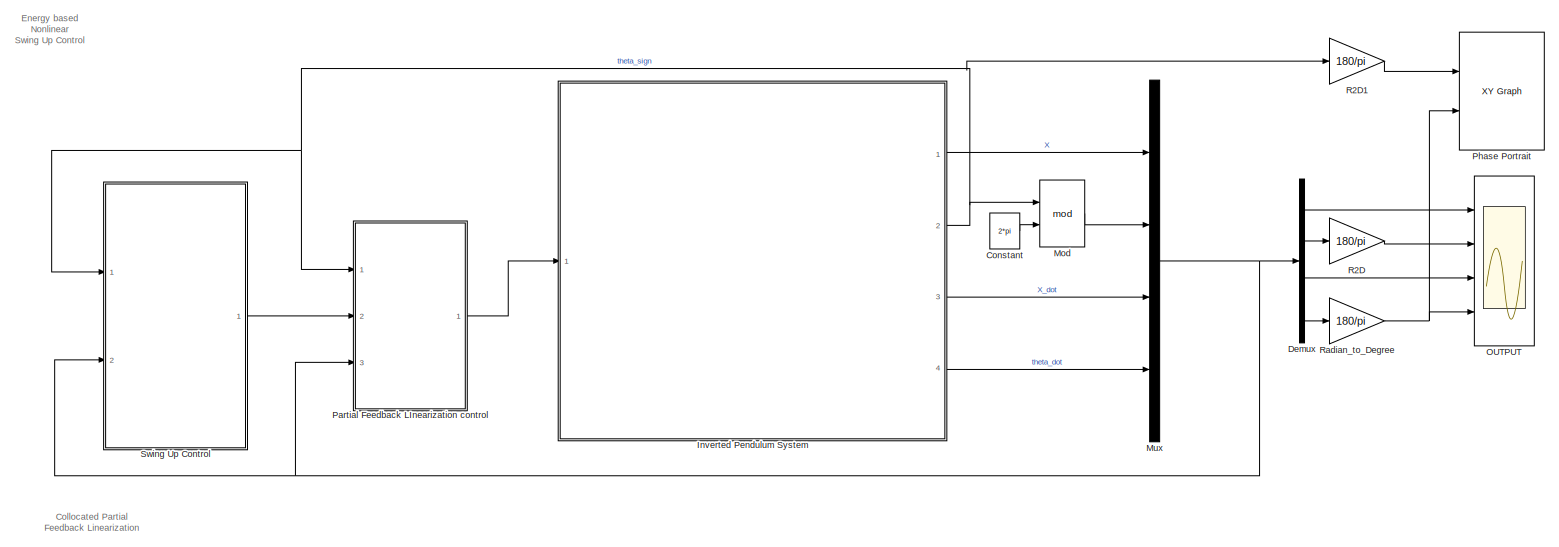
[diagram: root canvas - part 1/1, most of the canvas]
MODEL slx_148ceee0f62c
KIND model
CONFIG AbsTol = auto
CONFIG EnableMultiTasking = off
CONFIG FixedStep = 0.01
CONFIG MaxStep = auto
CONFIG MinStep = auto
CONFIG RelTol = 1e-3
CONFIG SampleTimeConstraint = Unconstrained
CONFIG SolverName = VariableStepAuto
CONFIG StartTime = 0.0
CONFIG StopTime = 30
BLOCK [Constant] Constant
  Value = 2*pi
BLOCK [Demux] Demux
  Ports = [1, 4]
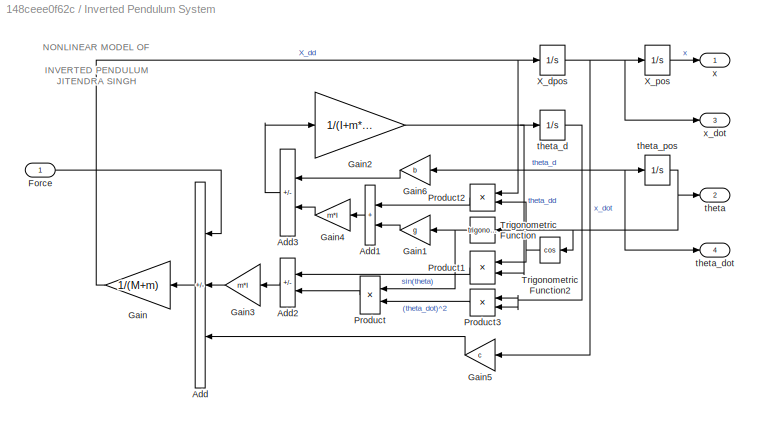
BLOCK [SubSystem] Inverted Pendulum System
  Ports = [1, 4]
  RequestExecContextInheritance = off
BLOCK [Sum] Inverted Pendulum System/Add
  IconShape = rectangular
  Inputs = ++-
  NameLocation = top
  Ports = [3, 1]
BLOCK [Sum] Inverted Pendulum System/Add1
  IconShape = rectangular
  NameLocation = top
  Ports = [2, 1]
BLOCK [Sum] Inverted Pendulum System/Add2
  IconShape = rectangular
  Inputs = -+
  NameLocation = top
  Ports = [2, 1]
BLOCK [Sum] Inverted Pendulum System/Add3
  IconShape = rectangular
  Inputs = --
  NameLocation = top
  Ports = [2, 1]
BLOCK [Inport] Inverted Pendulum System/Force
BLOCK [Gain] Inverted Pendulum System/Gain
  Gain = 1/(M+m)
  NameLocation = top
BLOCK [Gain] Inverted Pendulum System/Gain1
  Gain = g
  NameLocation = top
BLOCK [Gain] Inverted Pendulum System/Gain2
  Gain = 1/(I+m*(l^2))
BLOCK [Gain] Inverted Pendulum System/Gain3
  Gain = m*l
  NameLocation = top
BLOCK [Gain] Inverted Pendulum System/Gain4
  Gain = m*l
  NameLocation = top
BLOCK [Gain] Inverted Pendulum System/Gain5
  Gain = c
  NameLocation = top
BLOCK [Gain] Inverted Pendulum System/Gain6
  Gain = b
  NameLocation = top
BLOCK [Product] Inverted Pendulum System/Product
  NameLocation = top
  Ports = [2, 1]
BLOCK [Product] Inverted Pendulum System/Product1
  NameLocation = top
  Ports = [2, 1]
BLOCK [Product] Inverted Pendulum System/Product2
  NameLocation = top
  Ports = [2, 1]
BLOCK [Product] Inverted Pendulum System/Product3
  NameLocation = top
  Ports = [2, 1]
BLOCK [Trigonometry] Inverted Pendulum System/Trigonometric Function
  NameLocation = top
  Ports = [1, 1]
BLOCK [Trigonometry] Inverted Pendulum System/Trigonometric Function2
  NameLocation = top
  Operator = cos
  Ports = [1, 1]
BLOCK [Integrator] Inverted Pendulum System/X_dpos
  Ports = [1, 1]
BLOCK [Integrator] Inverted Pendulum System/X_pos
  Ports = [1, 1]
BLOCK [Outport] Inverted Pendulum System/theta
  Port = 2
  VectorParamsAs1DForOutWhenUnconnected = off
BLOCK [Integrator] Inverted Pendulum System/theta_d
  Ports = [1, 1]
BLOCK [Outport] Inverted Pendulum System/theta_dot
  Port = 4
  VectorParamsAs1DForOutWhenUnconnected = off
BLOCK [Integrator] Inverted Pendulum System/theta_pos
  InitialCondition = 1*(pi/180)
  Ports = [1, 1]
BLOCK [Outport] Inverted Pendulum System/x
  VectorParamsAs1DForOutWhenUnconnected = off
BLOCK [Outport] Inverted Pendulum System/x_dot
  Port = 3
  VectorParamsAs1DForOutWhenUnconnected = off
BLOCK [Math] Mod
  Operator = mod
  Ports = [2, 1]
  SignedPower = on
BLOCK [Mux] Mux
  DisplayOption = bar
  Ports = [4, 1]
BLOCK [Scope] OUTPUT
  Floating = off
  NumInputPorts = 4
  Ports = [4]
  ScopeSpecificationString = Simulink.scopes.TimeScopeBlockCfg('CurrentConfiguration', extmgr.ConfigurationSet(extmgr.Configuration('Core','General UI',true,'FigureColor',[1 1 1]),extmgr.Configuration('Core','Source UI',true),extmgr.Configuration('Sources','WiredSimulink',true,'DataLoggingVariableName','ScopeData1'),extmgr.Configuration('Visuals','Time Domain',true,'SerializedDisplays',{struct('MinYLimReal','-0.05268','MaxYLi...<+4022ch>
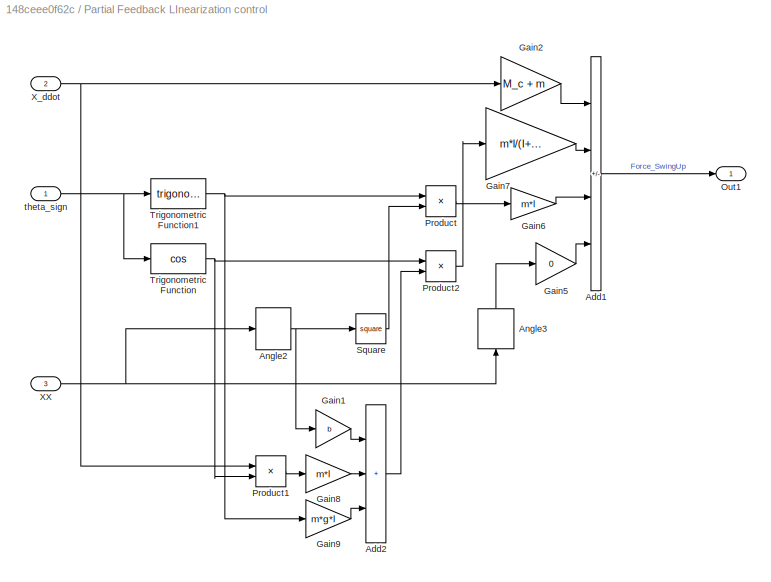
BLOCK [SubSystem] Partial Feedback LInearization control
  Ports = [3, 1]
  RequestExecContextInheritance = off
BLOCK [Sum] Partial Feedback LInearization control/Add1
  IconShape = rectangular
  Inputs = +--+
  Ports = [4, 1]
BLOCK [Sum] Partial Feedback LInearization control/Add2
  IconShape = rectangular
  Inputs = +++
  Ports = [3, 1]
BLOCK [Selector] Partial Feedback LInearization control/Angle2
  IndexOptions = Index vector (dialog)
  Indices = [4]
  InputPortWidth = 4
  OutputSizes = 1
  Ports = [1, 1]
BLOCK [Selector] Partial Feedback LInearization control/Angle3
  IndexOptions = Index vector (dialog)
  Indices = [3]
  InputPortWidth = 4
  NameLocation = right
  OutputSizes = 1
  Ports = [1, 1]
BLOCK [Gain] Partial Feedback LInearization control/Gain1
  Gain = b
BLOCK [Gain] Partial Feedback LInearization control/Gain2
  Gain = M_c + m
BLOCK [Gain] Partial Feedback LInearization control/Gain5
  Gain = 0
BLOCK [Gain] Partial Feedback LInearization control/Gain6
  Gain = m*l
BLOCK [Gain] Partial Feedback LInearization control/Gain7
  Gain = m*l/(I+m*l^2)
BLOCK [Gain] Partial Feedback LInearization control/Gain8
  Gain = m*l
BLOCK [Gain] Partial Feedback LInearization control/Gain9
  Gain = m*g*l
BLOCK [Outport] Partial Feedback LInearization control/Out1
  NameLocation = top
  VectorParamsAs1DForOutWhenUnconnected = off
BLOCK [Product] Partial Feedback LInearization control/Product
  Ports = [2, 1]
BLOCK [Product] Partial Feedback LInearization control/Product1
  Ports = [2, 1]
BLOCK [Product] Partial Feedback LInearization control/Product2
  Ports = [2, 1]
BLOCK [Math] Partial Feedback LInearization control/Square
  Operator = square
  Ports = [1, 1]
  RndMeth = Zero
  SignedPower = on
BLOCK [Trigonometry] Partial Feedback LInearization control/Trigonometric Function
  Operator = cos
  Ports = [1, 1]
BLOCK [Trigonometry] Partial Feedback LInearization control/Trigonometric Function1
  Ports = [1, 1]
BLOCK [Inport] Partial Feedback LInearization control/XX
  Port = 3
BLOCK [Inport] Partial Feedback LInearization control/X_ddot
  Port = 2
BLOCK [Inport] Partial Feedback LInearization control/theta_sign
BLOCK [Reference] Phase Portrait  REF=simulink/Sinks/XY Graph
  Commented = on
  Ports = [2]
  SourceBlock = simulink/Sinks/XY Graph
  SourceProductBaseCode = SL
  SourceType = XY scope.
BLOCK [Gain] R2D
  Gain = 180/pi
BLOCK [Gain] R2D1
  Gain = 180/pi
BLOCK [Gain] Radian_to_Degree
  Gain = 180/pi
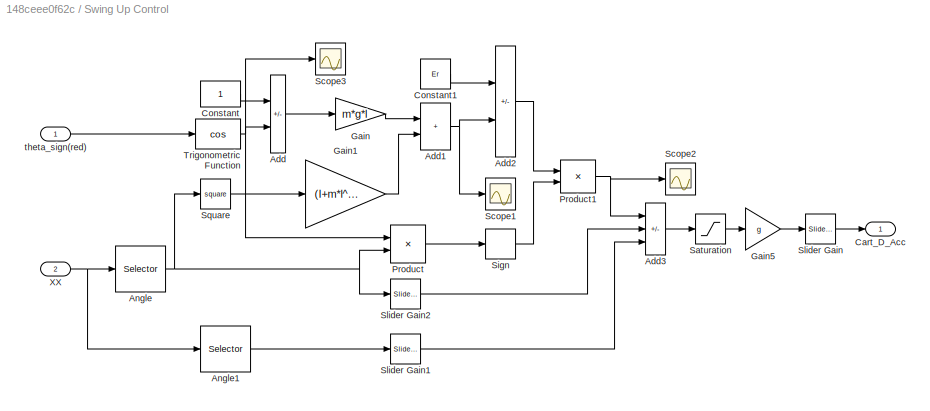
BLOCK [SubSystem] Swing Up Control
  Ports = [2, 1]
  RequestExecContextInheritance = off
BLOCK [Sum] Swing Up Control/Add
  IconShape = rectangular
  Inputs = +-
  Ports = [2, 1]
BLOCK [Sum] Swing Up Control/Add1
  IconShape = rectangular
  Ports = [2, 1]
BLOCK [Sum] Swing Up Control/Add2
  IconShape = rectangular
  Inputs = -+
  Ports = [2, 1]
BLOCK [Sum] Swing Up Control/Add3
  IconShape = rectangular
  Inputs = +--
  Ports = [3, 1]
BLOCK [Selector] Swing Up Control/Angle
  IndexOptions = Index vector (dialog)
  Indices = [4]
  InputPortWidth = 4
  OutputSizes = 1
  Ports = [1, 1]
BLOCK [Selector] Swing Up Control/Angle1
  IndexOptions = Index vector (dialog)
  Indices = [1]
  InputPortWidth = 4
  OutputSizes = 1
  Ports = [1, 1]
BLOCK [Outport] Swing Up Control/Cart_D_Acc
  VectorParamsAs1DForOutWhenUnconnected = off
BLOCK [Constant] Swing Up Control/Constant
BLOCK [Constant] Swing Up Control/Constant1
  Value = Er
BLOCK [Gain] Swing Up Control/Gain
  Gain = m*g*l
BLOCK [Gain] Swing Up Control/Gain1
  Gain = (I+m*l^2)/2
BLOCK [Gain] Swing Up Control/Gain5
  Gain = g
BLOCK [Product] Swing Up Control/Product
  Ports = [2, 1]
BLOCK [Product] Swing Up Control/Product1
  Ports = [2, 1]
BLOCK [Saturate] Swing Up Control/Saturation
  LowerLimit = -n*g
  UpperLimit = n*g
BLOCK [Scope] Swing Up Control/Scope1
  Floating = off
  NumInputPorts = 1
  Ports = [1]
  ScopeSpecificationString = Simulink.scopes.TimeScopeBlockCfg('CurrentConfiguration', extmgr.ConfigurationSet(extmgr.Configuration('Core','General UI',true),extmgr.Configuration('Core','Source UI',true),extmgr.Configuration('Sources','WiredSimulink',true,'DataLoggingVariableName','ScopeData1'),extmgr.Configuration('Visuals','Time Domain',true,'SerializedDisplays',{struct('MinYLimReal','-1.05319','MaxYLimReal','9.47873','YLab...<+1415ch>
BLOCK [Scope] Swing Up Control/Scope2
  Floating = off
  NumInputPorts = 1
  Ports = [1]
  ScopeSpecificationString = Simulink.scopes.TimeScopeBlockCfg('CurrentConfiguration', extmgr.ConfigurationSet(extmgr.Configuration('Core','General UI',true),extmgr.Configuration('Core','Source UI',true),extmgr.Configuration('Sources','WiredSimulink',true,'DataLoggingVariableName','ScopeData2'),extmgr.Configuration('Visuals','Time Domain',true,'SerializedDisplays',{struct('MinYLimReal','-0.00098','MaxYLimReal','0.00882','YLab...<+1415ch>
BLOCK [Scope] Swing Up Control/Scope3
  Floating = off
  NumInputPorts = 1
  Ports = [1]
  ScopeSpecificationString = Simulink.scopes.TimeScopeBlockCfg('CurrentConfiguration', extmgr.ConfigurationSet(extmgr.Configuration('Core','General UI',true),extmgr.Configuration('Core','Source UI',true),extmgr.Configuration('Sources','WiredSimulink',true,'DataLoggingVariableName','ScopeData3'),extmgr.Configuration('Visuals','Time Domain',true,'SerializedDisplays',{struct('MinYLimReal','-1.25','MaxYLimReal','1.25','YLabelReal...<+1415ch>
BLOCK [Signum] Swing Up Control/Sign
BLOCK [Reference] Swing Up Control/Slider Gain  REF=simulink/Math
Operations/Slider
Gain
  Ports = [1, 1]
  SourceBlock = simulink/Math\nOperations/Slider\nGain
  SourceProductBaseCode = SL
  SourceType = Slider Gain
BLOCK [Reference] Swing Up Control/Slider Gain1  REF=simulink/Math
Operations/Slider
Gain
  Ports = [1, 1]
  SourceBlock = simulink/Math\nOperations/Slider\nGain
  SourceProductBaseCode = SL
  SourceType = Slider Gain
BLOCK [Reference] Swing Up Control/Slider Gain2  REF=simulink/Math
Operations/Slider
Gain
  Ports = [1, 1]
  SourceBlock = simulink/Math\nOperations/Slider\nGain
  SourceProductBaseCode = SL
  SourceType = Slider Gain
BLOCK [Math] Swing Up Control/Square
  Operator = square
  Ports = [1, 1]
  RndMeth = Zero
  SignedPower = on
BLOCK [Trigonometry] Swing Up Control/Trigonometric Function
  Operator = cos
  Ports = [1, 1]
BLOCK [Inport] Swing Up Control/XX
  NameLocation = top
  Port = 2
BLOCK [Inport] Swing Up Control/theta_sign(red)
ANNOTATION (root): Energy based Nonlinear Swing Up Control
ANNOTATION (root): Collocated Partial Feedback Linearization
ANNOTATION Inverted Pendulum System: NONLINEAR MODEL OF INVERTED PENDULUM JITENDRA SINGH
LINE Constant:1 -> Mod:2
LINE Demux:1 -> OUTPUT:1
LINE Demux:2 -> R2D:1
LINE Demux:3 -> OUTPUT:3
LINE Demux:4 -> Radian_to_Degree:1
LINE Inverted Pendulum System/Add1:1 -> Inverted Pendulum System/Gain4:1
LINE Inverted Pendulum System/Add2:1 -> Inverted Pendulum System/Gain3:1
LINE Inverted Pendulum System/Add3:1 -> Inverted Pendulum System/Gain2:1
LINE Inverted Pendulum System/Add:1 -> Inverted Pendulum System/Gain:1
LINE Inverted Pendulum System/Force:1 -> Inverted Pendulum System/Add:1
LINE Inverted Pendulum System/Gain1:1 -> Inverted Pendulum System/Add1:2
NET Inverted Pendulum System/Gain2:1 -> Inverted Pendulum System/Product1:2, Inverted Pendulum System/theta_d:1
LINE Inverted Pendulum System/Gain3:1 -> Inverted Pendulum System/Add:2
LINE Inverted Pendulum System/Gain4:1 -> Inverted Pendulum System/Add3:2
LINE Inverted Pendulum System/Gain5:1 -> Inverted Pendulum System/Add:3
LINE Inverted Pendulum System/Gain6:1 -> Inverted Pendulum System/Add3:1
NET Inverted Pendulum System/Gain:1 -> Inverted Pendulum System/Product2:1, Inverted Pendulum System/X_dpos:1
LINE Inverted Pendulum System/Product1:1 -> Inverted Pendulum System/Add2:1
LINE Inverted Pendulum System/Product2:1 -> Inverted Pendulum System/Add1:1
LINE Inverted Pendulum System/Product3:1 -> Inverted Pendulum System/Product:2
LINE Inverted Pendulum System/Product:1 -> Inverted Pendulum System/Add2:2
NET Inverted Pendulum System/Trigonometric Function2:1 -> Inverted Pendulum System/Product1:1, Inverted Pendulum System/Product2:2
NET Inverted Pendulum System/Trigonometric Function:1 -> Inverted Pendulum System/Gain1:1, Inverted Pendulum System/Product:1
NET Inverted Pendulum System/X_dpos:1 -> Inverted Pendulum System/Gain5:1, Inverted Pendulum System/X_pos:1, Inverted Pendulum System/x_dot:1
LINE Inverted Pendulum System/X_pos:1 -> Inverted Pendulum System/x:1
NET Inverted Pendulum System/theta_d:1 -> Inverted Pendulum System/Gain6:1, Inverted Pendulum System/Product3:1, Inverted Pendulum System/Product3:2, Inverted Pendulum System/theta_dot:1, Inverted Pendulum System/theta_pos:1
NET Inverted Pendulum System/theta_pos:1 -> Inverted Pendulum System/Trigonometric Function2:1, Inverted Pendulum System/Trigonometric Function:1, Inverted Pendulum System/theta:1
LINE Inverted Pendulum System:1 -> Mux:1
NET Inverted Pendulum System:2 -> Mod:1, Partial Feedback LInearization control:1, R2D1:1, Swing Up Control:1
LINE Inverted Pendulum System:3 -> Mux:3
LINE Inverted Pendulum System:4 -> Mux:4
LINE Mod:1 -> Mux:2
NET Mux:1 -> Demux:1, Partial Feedback LInearization control:3, Swing Up Control:2
LINE Partial Feedback LInearization control/Add1:1 -> Partial Feedback LInearization control/Out1:1
LINE Partial Feedback LInearization control/Add2:1 -> Partial Feedback LInearization control/Product2:2
NET Partial Feedback LInearization control/Angle2:1 -> Partial Feedback LInearization control/Gain1:1, Partial Feedback LInearization control/Square:1
LINE Partial Feedback LInearization control/Angle3:1 -> Partial Feedback LInearization control/Gain5:1
LINE Partial Feedback LInearization control/Gain1:1 -> Partial Feedback LInearization control/Add2:1
LINE Partial Feedback LInearization control/Gain2:1 -> Partial Feedback LInearization control/Add1:1
LINE Partial Feedback LInearization control/Gain5:1 -> Partial Feedback LInearization control/Add1:4
LINE Partial Feedback LInearization control/Gain6:1 -> Partial Feedback LInearization control/Add1:3
LINE Partial Feedback LInearization control/Gain7:1 -> Partial Feedback LInearization control/Add1:2
LINE Partial Feedback LInearization control/Gain8:1 -> Partial Feedback LInearization control/Add2:2
LINE Partial Feedback LInearization control/Gain9:1 -> Partial Feedback LInearization control/Add2:3
LINE Partial Feedback LInearization control/Product1:1 -> Partial Feedback LInearization control/Gain8:1
LINE Partial Feedback LInearization control/Product2:1 -> Partial Feedback LInearization control/Gain7:1
LINE Partial Feedback LInearization control/Product:1 -> Partial Feedback LInearization control/Gain6:1
LINE Partial Feedback LInearization control/Square:1 -> Partial Feedback LInearization control/Product:2
NET Partial Feedback LInearization control/Trigonometric Function1:1 -> Partial Feedback LInearization control/Gain9:1, Partial Feedback LInearization control/Product:1
NET Partial Feedback LInearization control/Trigonometric Function:1 -> Partial Feedback LInearization control/Product1:2, Partial Feedback LInearization control/Product2:1
NET Partial Feedback LInearization control/XX:1 -> Partial Feedback LInearization control/Angle2:1, Partial Feedback LInearization control/Angle3:1
NET Partial Feedback LInearization control/X_ddot:1 -> Partial Feedback LInearization control/Gain2:1, Partial Feedback LInearization control/Product1:1
NET Partial Feedback LInearization control/theta_sign:1 -> Partial Feedback LInearization control/Trigonometric Function1:1, Partial Feedback LInearization control/Trigonometric Function:1
LINE Partial Feedback LInearization control:1 -> Inverted Pendulum System:1
LINE R2D1:1 -> Phase Portrait:1
LINE R2D:1 -> OUTPUT:2
NET Radian_to_Degree:1 -> OUTPUT:4, Phase Portrait:2
NET Swing Up Control/Add1:1 -> Swing Up Control/Add2:2, Swing Up Control/Scope1:1
LINE Swing Up Control/Add2:1 -> Swing Up Control/Product1:1
LINE Swing Up Control/Add3:1 -> Swing Up Control/Saturation:1
LINE Swing Up Control/Add:1 -> Swing Up Control/Gain:1
LINE Swing Up Control/Angle1:1 -> Swing Up Control/Slider Gain1:1
NET Swing Up Control/Angle:1 -> Swing Up Control/Product:2, Swing Up Control/Slider Gain2:1, Swing Up Control/Square:1
LINE Swing Up Control/Constant1:1 -> Swing Up Control/Add2:1
LINE Swing Up Control/Constant:1 -> Swing Up Control/Add:1
LINE Swing Up Control/Gain1:1 -> Swing Up Control/Add1:2
LINE Swing Up Control/Gain5:1 -> Swing Up Control/Slider Gain:1
LINE Swing Up Control/Gain:1 -> Swing Up Control/Add1:1
NET Swing Up Control/Product1:1 -> Swing Up Control/Add3:1, Swing Up Control/Scope2:1
LINE Swing Up Control/Product:1 -> Swing Up Control/Sign:1
LINE Swing Up Control/Saturation:1 -> Swing Up Control/Gain5:1
LINE Swing Up Control/Sign:1 -> Swing Up Control/Product1:2
LINE Swing Up Control/Slider Gain1:1 -> Swing Up Control/Add3:3
LINE Swing Up Control/Slider Gain2:1 -> Swing Up Control/Add3:2
LINE Swing Up Control/Slider Gain:1 -> Swing Up Control/Cart_D_Acc:1
LINE Swing Up Control/Square:1 -> Swing Up Control/Gain1:1
NET Swing Up Control/Trigonometric Function:1 -> Swing Up Control/Add:2, Swing Up Control/Product:1, Swing Up Control/Scope3:1
NET Swing Up Control/XX:1 -> Swing Up Control/Angle1:1, Swing Up Control/Angle:1
LINE Swing Up Control/theta_sign(red):1 -> Swing Up Control/Trigonometric Function:1
LINE Swing Up Control:1 -> Partial Feedback LInearization control:2
note: NET lines group one-source signal fan-out (src -> all destinations, sorted); 1:1 wires keep LINE
